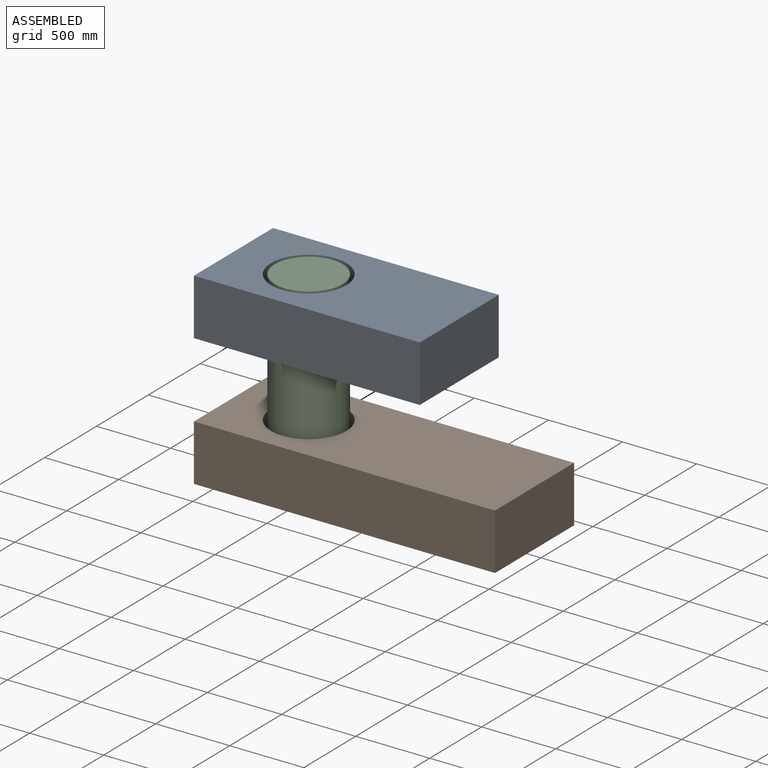
[diagram: assembled view]
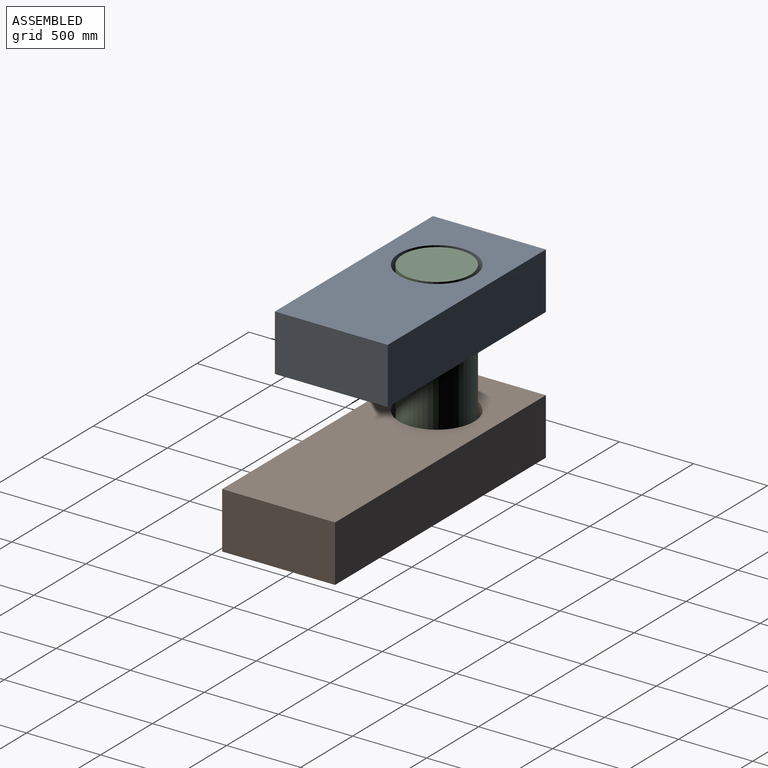
[diagram: assembled view, second angle]
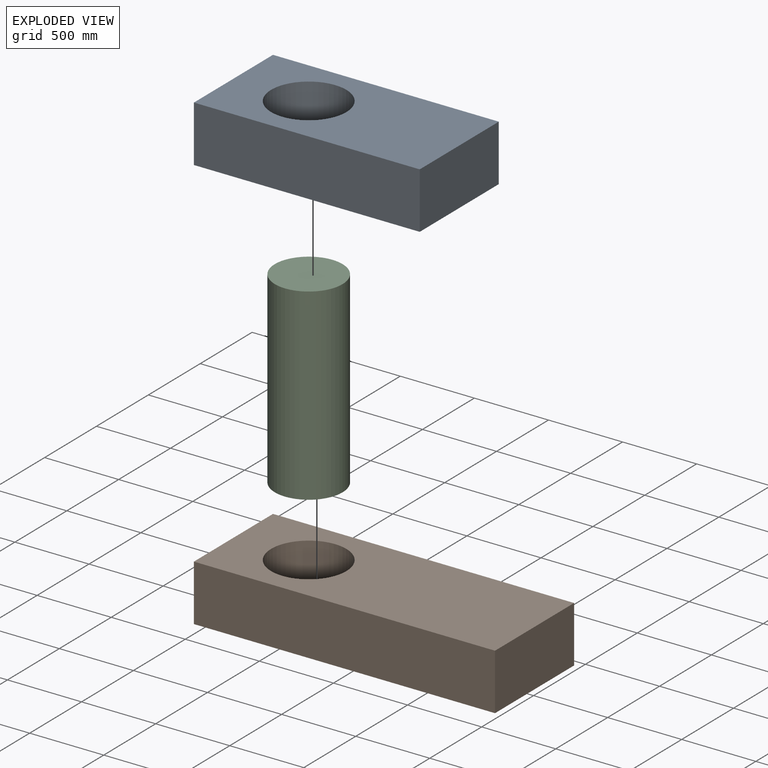
[diagram: exploded view]
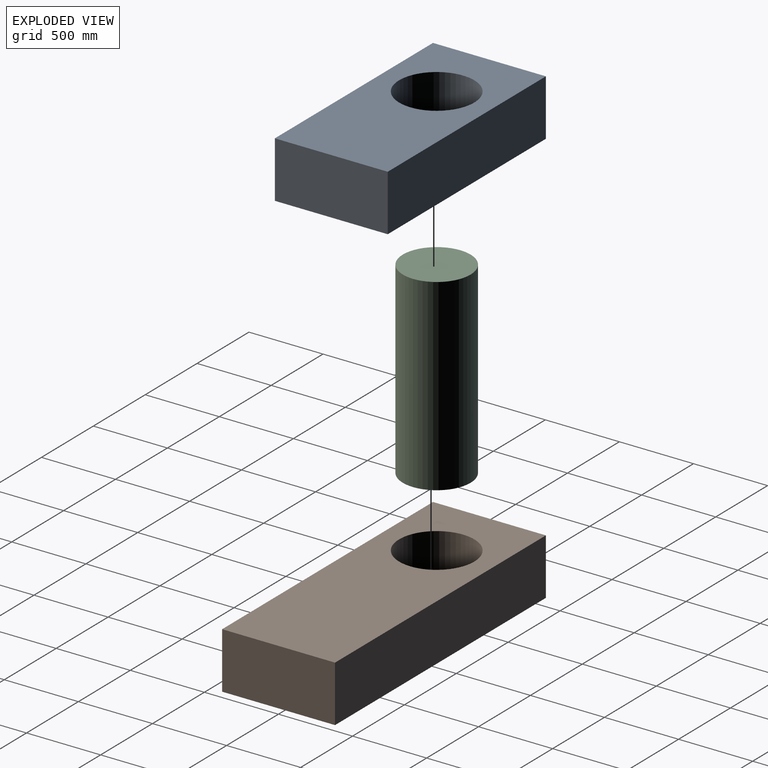
[diagram: exploded view, second angle]
ASSEMBLY  parts=3 mates=4
PART A: 7 faces, bbox 1524x762x381 mm
  f0: plane 762x381mm, normal (-1,0,0), area 290322mm2, adj f1,f4,f5,f6
  f1: plane 1524x381mm, normal (0,-1,0), area 580644mm2, adj f0,f2,f5,f6
  f2: plane 762x381mm, normal (1,0,0), area 290322mm2, adj f1,f4,f5,f6
  f3: cylinder r=254mm len=508mm, axis (0,0,-1), area 608049mm2, adj f5,f6
  f4: plane 1524x381mm, normal (0,1,0), area 580644mm2, adj f0,f2,f5,f6
  f5: plane 1524x762mm, normal (0,0,1), area 958605mm2, adj f0,f1,f2,f3,f4
  f6: plane 1524x762mm, normal (0,0,-1), area 958605mm2, adj f0,f1,f2,f3,f4
PART B: 7 faces, bbox 2032x762x381 mm
  f0: plane 762x381mm, normal (-1,0,0), area 290322mm2, adj f1,f4,f5,f6
  f1: plane 2032x381mm, normal (0,-1,0), area 774192mm2, adj f0,f2,f5,f6
  f2: plane 762x381mm, normal (1,0,0), area 290322mm2, adj f1,f4,f5,f6
  f3: cylinder r=254mm len=508mm, axis (0,0,-1), area 608049mm2, adj f5,f6
  f4: plane 2032x381mm, normal (0,1,0), area 774192mm2, adj f0,f2,f5,f6
  f5: plane 2032x762mm, normal (0,0,1), area 1345701mm2, adj f0,f1,f2,f3,f4
  f6: plane 2032x762mm, normal (0,0,-1), area 1345701mm2, adj f0,f1,f2,f3,f4
PART C: 3 faces, bbox 457.2x457.2x1270 mm
  f0: plane 457.2x457.2mm, normal (0,0,-1), area 164173.2mm2, adj f1
  f1: cylinder r=228.6mm len=1270mm, axis (0,0,1), area 1824146.9mm2, adj f0,f2
  f2: plane 457.2x457.2mm, normal (0,0,1), area 164173.2mm2, adj f1
PLACE A t=(-519.84,4.03,651.68)mm
PLACE B t=(-519.84,4.03,-237.32)mm fixed
PLACE C t=(-519.84,4.03,207.18)mm
MATE cylindrical C.f1 <-> B.f3  axis (0,0,1) through (-519.84,4.03,-427.82)mm
MATE planar B.f6 <-> C.f1  axis (0,0,-1) through (64.67,4.03,-427.82)mm
MATE planar C.f1 <-> A.f5  axis (0,0,1) through (-519.84,4.03,842.18)mm
MATE cylindrical C.f1 <-> A.f3  axis (0,0,1) through (-519.84,4.03,842.18)mm
